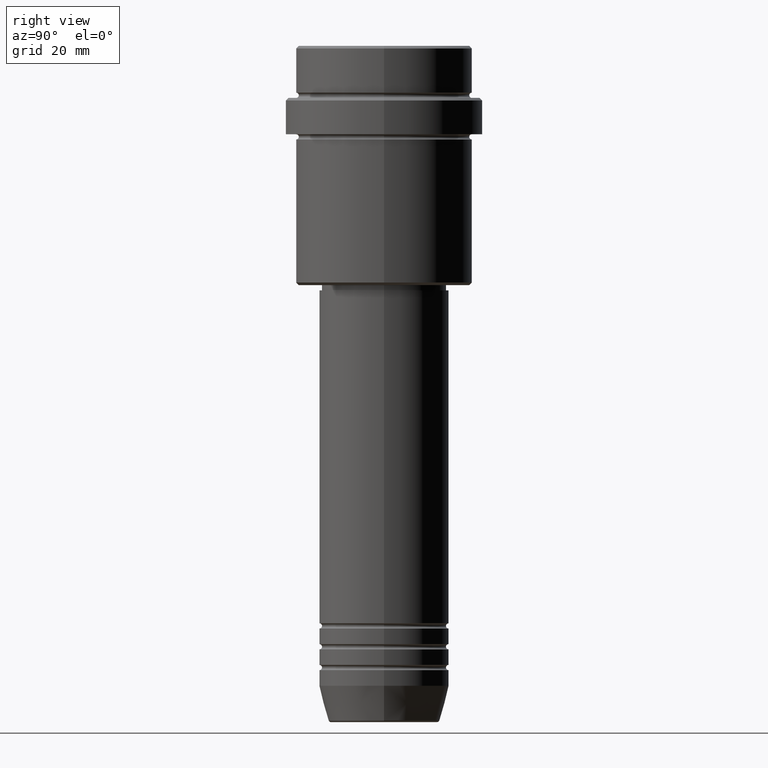
[diagram: clean part render]
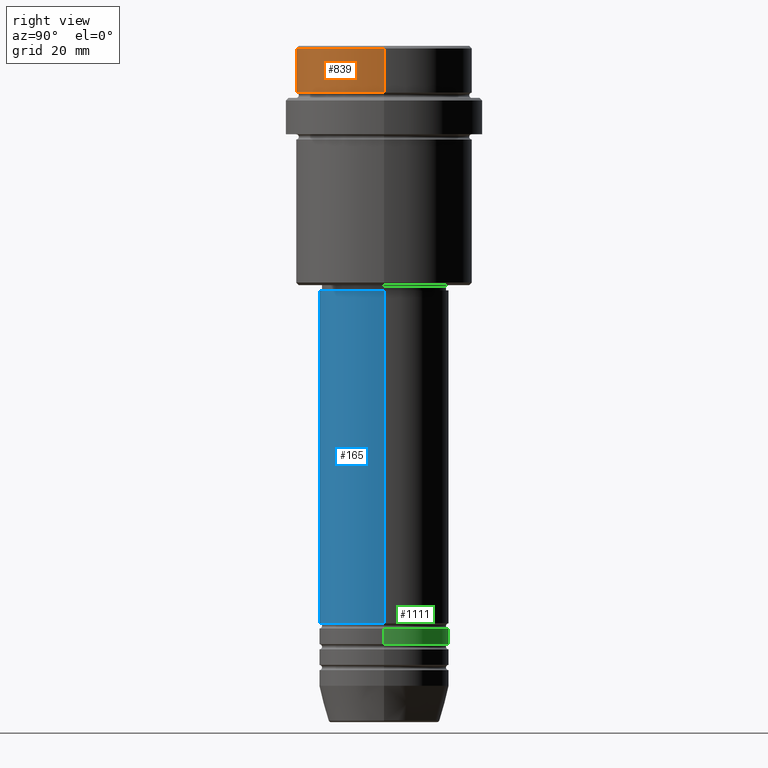
[diagram: same view with three faces highlighted in distinct colors, each labeled with its STEP entity id]
A machine part, right view with three faces highlighted in distinct colors.
Their STEP definitions:

[orange] entity #839 — the highlighted cylindrical surface (partial cylindrical patch) has radius 17 mm, axis along (-0, -0, 1).
#9 = EDGE_CURVE ( 'NONE', #32, #1214, #374, .T. ) ;
#32 = VERTEX_POINT ( 'NONE', #405 ) ;
#39 = AXIS2_PLACEMENT_3D ( 'NONE', #1119, #807, #1240 ) ;
#70 = ORIENTED_EDGE ( 'NONE', *, *, #9, .T. ) ;
#137 = AXIS2_PLACEMENT_3D ( 'NONE', #843, #1050, #532 ) ;
#149 = CARTESIAN_POINT ( 'NONE',  ( 0.000000000000000000, 0.000000000000000000, 0.000000000000000000 ) ) ;
#171 = ORIENTED_EDGE ( 'NONE', *, *, #484, .T. ) ;
#176 = VECTOR ( 'NONE', #753, 1000.000000000000000 ) ;
#295 = EDGE_CURVE ( 'NONE', #1327, #1118, #390, .T. ) ;
#331 = EDGE_CURVE ( 'NONE', #32, #1118, #554, .T. ) ;
#346 = EDGE_LOOP ( 'NONE', ( #573, #70, #171, #366 ) ) ;
#366 = ORIENTED_EDGE ( 'NONE', *, *, #295, .T. ) ;
#374 = CIRCLE ( 'NONE', #137, 16.99999999999998579 ) ;
#390 = CIRCLE ( 'NONE', #39, 16.99999999999999289 ) ;
#405 = CARTESIAN_POINT ( 'NONE',  ( -16.99999999999998579, 2.081899558550499491E-15, -8.999999999999998224 ) ) ;
#484 = EDGE_CURVE ( 'NONE', #1214, #1327, #1146, .T. ) ;
#497 = CARTESIAN_POINT ( 'NONE',  ( 16.99999999999999289, 0.000000000000000000, 0.000000000000000000 ) ) ;
#532 = DIRECTION ( 'NONE',  ( 1.000000000000000000, 0.000000000000000000, 0.000000000000000000 ) ) ;
#554 = LINE ( 'NONE', #668, #176 ) ;
#573 = ORIENTED_EDGE ( 'NONE', *, *, #331, .F. ) ;
#590 = VECTOR ( 'NONE', #1055, 1000.000000000000000 ) ;
#648 = CARTESIAN_POINT ( 'NONE',  ( 16.99999999999999289, 0.000000000000000000, -0.4999999999999622524 ) ) ;
#668 = CARTESIAN_POINT ( 'NONE',  ( -16.99999999999999289, 2.081899558550499885E-15, 0.000000000000000000 ) ) ;
#685 = DIRECTION ( 'NONE',  ( 1.000000000000000000, 0.000000000000000000, 0.000000000000000000 ) ) ;
#753 = DIRECTION ( 'NONE',  ( -0.000000000000000000, -0.000000000000000000, 1.000000000000000000 ) ) ;
#807 = DIRECTION ( 'NONE',  ( 0.000000000000000000, 0.000000000000000000, -1.000000000000000000 ) ) ;
#839 = ADVANCED_FACE ( 'NONE', ( #1105 ), #1012, .T. ) ;
#843 = CARTESIAN_POINT ( 'NONE',  ( 0.000000000000000000, 0.000000000000000000, -8.999999999999998224 ) ) ;
#1012 = CYLINDRICAL_SURFACE ( 'NONE', #1202, 16.99999999999999289 ) ;
#1023 = CARTESIAN_POINT ( 'NONE',  ( -16.99999999999999289, 2.081899558550499885E-15, -0.4999999999999622524 ) ) ;
#1050 = DIRECTION ( 'NONE',  ( -0.000000000000000000, -0.000000000000000000, 1.000000000000000000 ) ) ;
#1055 = DIRECTION ( 'NONE',  ( -0.000000000000000000, -0.000000000000000000, 1.000000000000000000 ) ) ;
#1105 = FACE_OUTER_BOUND ( 'NONE', #346, .T. ) ;
#1118 = VERTEX_POINT ( 'NONE', #1023 ) ;
#1119 = CARTESIAN_POINT ( 'NONE',  ( 0.000000000000000000, 0.000000000000000000, -0.4999999999999622524 ) ) ;
#1146 = LINE ( 'NONE', #497, #590 ) ;
#1202 = AXIS2_PLACEMENT_3D ( 'NONE', #149, #1237, #685 ) ;
#1214 = VERTEX_POINT ( 'NONE', #1367 ) ;
#1237 = DIRECTION ( 'NONE',  ( -0.000000000000000000, -0.000000000000000000, 1.000000000000000000 ) ) ;
#1240 = DIRECTION ( 'NONE',  ( 1.000000000000000000, 0.000000000000000000, 0.000000000000000000 ) ) ;
#1327 = VERTEX_POINT ( 'NONE', #648 ) ;
#1367 = CARTESIAN_POINT ( 'NONE',  ( 16.99999999999998579, 0.000000000000000000, -8.999999999999998224 ) ) ;

[blue] entity #165 — the highlighted cylindrical surface (partial cylindrical patch) has radius 12.5 mm, axis along (-0, -0, 1).
#1 = VERTEX_POINT ( 'NONE', #631 ) ;
#20 = VECTOR ( 'NONE', #764, 1000.000000000000000 ) ;
#35 = CARTESIAN_POINT ( 'NONE',  ( -12.50000000000000000, 1.530808498934191521E-15, 0.000000000000000000 ) ) ;
#80 = CARTESIAN_POINT ( 'NONE',  ( -12.50000000000000000, 1.530808498934191521E-15, -47.00000000000000000 ) ) ;
#154 = CARTESIAN_POINT ( 'NONE',  ( 12.50000000000000000, 0.000000000000000000, -110.9999999999998721 ) ) ;
#165 = ADVANCED_FACE ( 'NONE', ( #785 ), #324, .T. ) ;
#174 = DIRECTION ( 'NONE',  ( 1.000000000000000000, 0.000000000000000000, 0.000000000000000000 ) ) ;
#226 = AXIS2_PLACEMENT_3D ( 'NONE', #284, #717, #174 ) ;
#284 = CARTESIAN_POINT ( 'NONE',  ( 0.000000000000000000, 0.000000000000000000, -47.00000000000000000 ) ) ;
#289 = CARTESIAN_POINT ( 'NONE',  ( 12.50000000000000000, 0.000000000000000000, -47.00000000000000000 ) ) ;
#324 = CYLINDRICAL_SURFACE ( 'NONE', #519, 12.50000000000000000 ) ;
#344 = CIRCLE ( 'NONE', #705, 12.50000000000000000 ) ;
#350 = DIRECTION ( 'NONE',  ( -0.000000000000000000, -0.000000000000000000, 1.000000000000000000 ) ) ;
#391 = CIRCLE ( 'NONE', #226, 12.50000000000000000 ) ;
#451 = ORIENTED_EDGE ( 'NONE', *, *, #486, .F. ) ;
#465 = VERTEX_POINT ( 'NONE', #289 ) ;
#466 = VERTEX_POINT ( 'NONE', #80 ) ;
#486 = EDGE_CURVE ( 'NONE', #466, #465, #391, .T. ) ;
#515 = DIRECTION ( 'NONE',  ( -0.000000000000000000, -0.000000000000000000, 1.000000000000000000 ) ) ;
#519 = AXIS2_PLACEMENT_3D ( 'NONE', #1210, #751, #758 ) ;
#575 = ORIENTED_EDGE ( 'NONE', *, *, #1324, .T. ) ;
#631 = CARTESIAN_POINT ( 'NONE',  ( -12.50000000000000000, 1.530808498934191521E-15, -110.9999999999998721 ) ) ;
#633 = DIRECTION ( 'NONE',  ( 1.000000000000000000, 0.000000000000000000, 0.000000000000000000 ) ) ;
#705 = AXIS2_PLACEMENT_3D ( 'NONE', #1172, #515, #633 ) ;
#717 = DIRECTION ( 'NONE',  ( -0.000000000000000000, -0.000000000000000000, 1.000000000000000000 ) ) ;
#751 = DIRECTION ( 'NONE',  ( -0.000000000000000000, -0.000000000000000000, 1.000000000000000000 ) ) ;
#752 = EDGE_CURVE ( 'NONE', #1, #466, #1216, .T. ) ;
#758 = DIRECTION ( 'NONE',  ( 1.000000000000000000, 0.000000000000000000, 0.000000000000000000 ) ) ;
#764 = DIRECTION ( 'NONE',  ( -0.000000000000000000, -0.000000000000000000, 1.000000000000000000 ) ) ;
#785 = FACE_OUTER_BOUND ( 'NONE', #1034, .T. ) ;
#875 = LINE ( 'NONE', #1093, #20 ) ;
#958 = VERTEX_POINT ( 'NONE', #154 ) ;
#1034 = EDGE_LOOP ( 'NONE', ( #1076, #1413, #575, #451 ) ) ;
#1062 = VECTOR ( 'NONE', #350, 1000.000000000000000 ) ;
#1076 = ORIENTED_EDGE ( 'NONE', *, *, #752, .F. ) ;
#1093 = CARTESIAN_POINT ( 'NONE',  ( 12.50000000000000000, 0.000000000000000000, 0.000000000000000000 ) ) ;
#1172 = CARTESIAN_POINT ( 'NONE',  ( 0.000000000000000000, 0.000000000000000000, -110.9999999999998721 ) ) ;
#1210 = CARTESIAN_POINT ( 'NONE',  ( 0.000000000000000000, 0.000000000000000000, 0.000000000000000000 ) ) ;
#1216 = LINE ( 'NONE', #35, #1062 ) ;
#1293 = EDGE_CURVE ( 'NONE', #1, #958, #344, .T. ) ;
#1324 = EDGE_CURVE ( 'NONE', #958, #465, #875, .T. ) ;
#1413 = ORIENTED_EDGE ( 'NONE', *, *, #1293, .T. ) ;

[green] entity #1111 — the highlighted cylindrical surface (partial cylindrical patch) has radius 12.5 mm, axis along (-0, -0, 1).
#11 = CARTESIAN_POINT ( 'NONE',  ( 12.50000000000000000, 0.000000000000000000, 0.000000000000000000 ) ) ;
#14 = CARTESIAN_POINT ( 'NONE',  ( 12.50000000000000000, 0.000000000000000000, -114.9999999999998863 ) ) ;
#135 = EDGE_CURVE ( 'NONE', #870, #926, #798, .T. ) ;
#202 = ORIENTED_EDGE ( 'NONE', *, *, #586, .F. ) ;
#206 = DIRECTION ( 'NONE',  ( -0.000000000000000000, -0.000000000000000000, 1.000000000000000000 ) ) ;
#232 = ORIENTED_EDGE ( 'NONE', *, *, #135, .T. ) ;
#259 = DIRECTION ( 'NONE',  ( -0.000000000000000000, -0.000000000000000000, 1.000000000000000000 ) ) ;
#379 = CYLINDRICAL_SURFACE ( 'NONE', #846, 12.50000000000000000 ) ;
#388 = CARTESIAN_POINT ( 'NONE',  ( 12.50000000000000000, 0.000000000000000000, -111.9999999999998721 ) ) ;
#401 = VERTEX_POINT ( 'NONE', #472 ) ;
#460 = VERTEX_POINT ( 'NONE', #388 ) ;
#472 = CARTESIAN_POINT ( 'NONE',  ( -12.50000000000000000, 1.530808498934191521E-15, -111.9999999999998721 ) ) ;
#558 = LINE ( 'NONE', #11, #1179 ) ;
#567 = FACE_OUTER_BOUND ( 'NONE', #858, .T. ) ;
#586 = EDGE_CURVE ( 'NONE', #460, #401, #1201, .T. ) ;
#613 = AXIS2_PLACEMENT_3D ( 'NONE', #863, #1300, #666 ) ;
#666 = DIRECTION ( 'NONE',  ( 1.000000000000000000, 0.000000000000000000, 0.000000000000000000 ) ) ;
#682 = AXIS2_PLACEMENT_3D ( 'NONE', #986, #206, #862 ) ;
#715 = DIRECTION ( 'NONE',  ( -0.000000000000000000, -0.000000000000000000, 1.000000000000000000 ) ) ;
#798 = CIRCLE ( 'NONE', #613, 12.50000000000000000 ) ;
#810 = CARTESIAN_POINT ( 'NONE',  ( 0.000000000000000000, 0.000000000000000000, 0.000000000000000000 ) ) ;
#811 = CARTESIAN_POINT ( 'NONE',  ( -12.50000000000000000, 1.530808498934191521E-15, -114.9999999999998863 ) ) ;
#813 = EDGE_CURVE ( 'NONE', #870, #460, #558, .T. ) ;
#846 = AXIS2_PLACEMENT_3D ( 'NONE', #810, #715, #1256 ) ;
#858 = EDGE_LOOP ( 'NONE', ( #232, #1241, #202, #1258 ) ) ;
#862 = DIRECTION ( 'NONE',  ( 1.000000000000000000, 0.000000000000000000, 0.000000000000000000 ) ) ;
#863 = CARTESIAN_POINT ( 'NONE',  ( 0.000000000000000000, 0.000000000000000000, -114.9999999999998863 ) ) ;
#870 = VERTEX_POINT ( 'NONE', #14 ) ;
#920 = CARTESIAN_POINT ( 'NONE',  ( -12.50000000000000000, 1.530808498934191521E-15, 0.000000000000000000 ) ) ;
#926 = VERTEX_POINT ( 'NONE', #811 ) ;
#986 = CARTESIAN_POINT ( 'NONE',  ( 0.000000000000000000, 0.000000000000000000, -111.9999999999998721 ) ) ;
#1004 = VECTOR ( 'NONE', #1349, 1000.000000000000000 ) ;
#1111 = ADVANCED_FACE ( 'NONE', ( #567 ), #379, .T. ) ;
#1179 = VECTOR ( 'NONE', #259, 1000.000000000000000 ) ;
#1201 = CIRCLE ( 'NONE', #682, 12.50000000000000000 ) ;
#1241 = ORIENTED_EDGE ( 'NONE', *, *, #1369, .T. ) ;
#1256 = DIRECTION ( 'NONE',  ( 1.000000000000000000, 0.000000000000000000, 0.000000000000000000 ) ) ;
#1258 = ORIENTED_EDGE ( 'NONE', *, *, #813, .F. ) ;
#1300 = DIRECTION ( 'NONE',  ( -0.000000000000000000, -0.000000000000000000, 1.000000000000000000 ) ) ;
#1337 = LINE ( 'NONE', #920, #1004 ) ;
#1349 = DIRECTION ( 'NONE',  ( -0.000000000000000000, -0.000000000000000000, 1.000000000000000000 ) ) ;
#1369 = EDGE_CURVE ( 'NONE', #926, #401, #1337, .T. ) ;